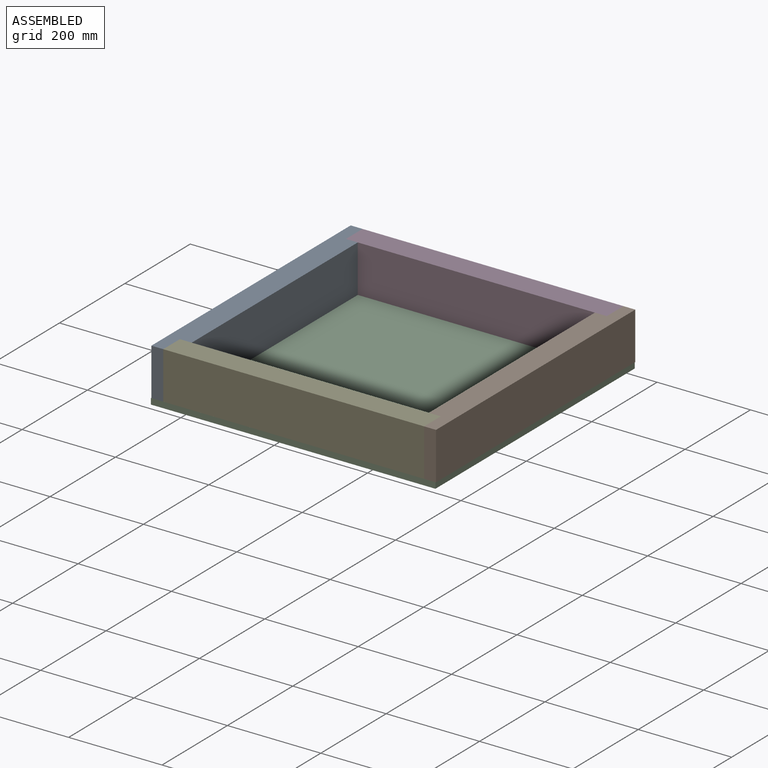
[diagram: assembled view]
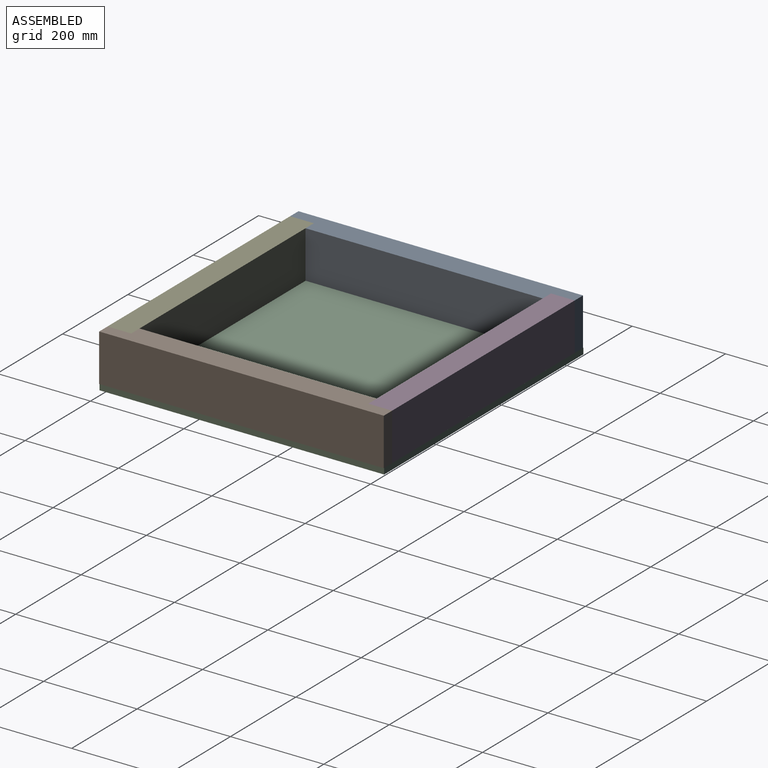
[diagram: assembled view, second angle]
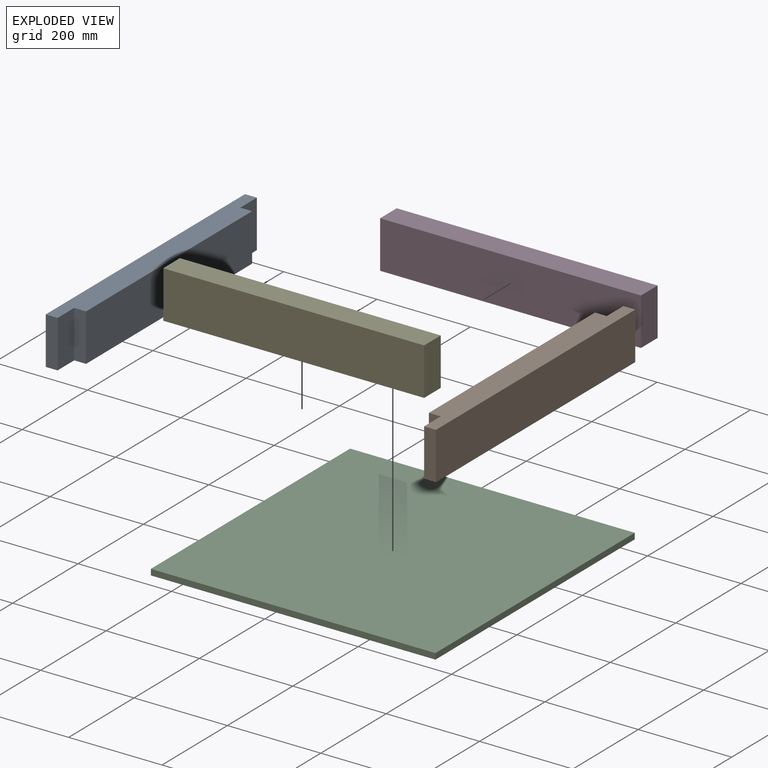
[diagram: exploded view]
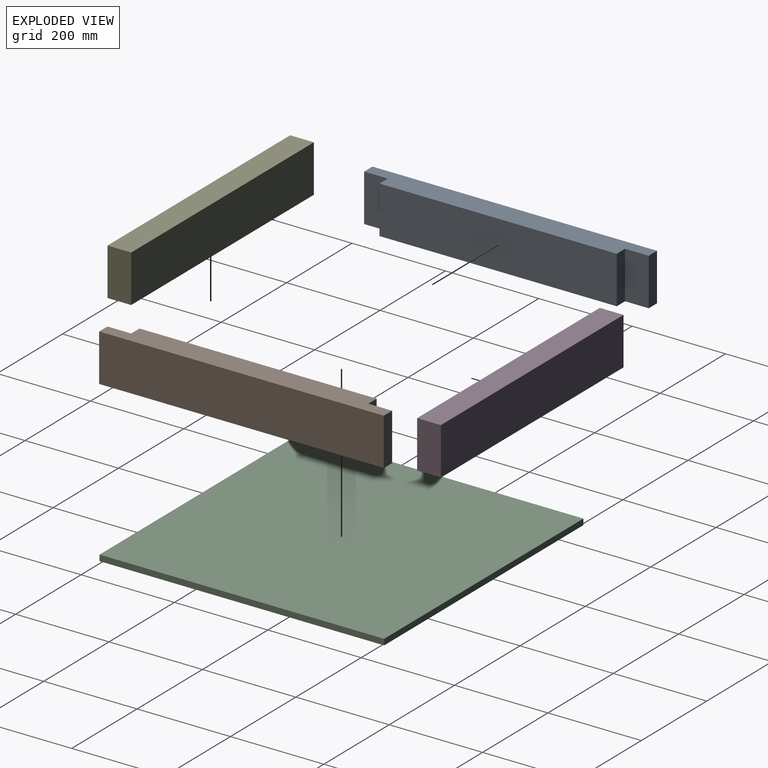
[diagram: exploded view, second angle]
ASSEMBLY  parts=5 mates=5
PART A: 10 faces, bbox 609.6x101.6x50.8 mm
  f0: plane 101.6x25.4mm, normal (-1,0,0), area 2580.6mm2, adj f1,f3,f5,f9
  f1: plane 609.6x50.8mm, normal (0,-1,0), area 28387mm2, adj f0,f2,f4,f5,f6,f7,f8,f9
  f2: plane 101.6x25.4mm, normal (1,0,0), area 2580.6mm2, adj f1,f3,f5,f7
  f3: plane 609.6x50.8mm, normal (0,1,0), area 28387mm2, adj f0,f2,f4,f5,f6,f7,f8,f9
  f4: plane 508x101.6mm, normal (0,0,1), area 51612.8mm2, adj f1,f3,f6,f8
  f5: plane 609.6x101.6mm, normal (0,0,-1), area 61935.4mm2, adj f0,f1,f2,f3
  f6: plane 101.6x25.4mm, normal (1,0,0), area 2580.6mm2, adj f1,f3,f4,f7
  f7: plane 101.6x50.8mm, normal (0,0,1), area 5161.3mm2, adj f1,f2,f3,f6
  f8: plane 101.6x25.4mm, normal (-1,0,0), area 2580.6mm2, adj f1,f3,f4,f9
  f9: plane 101.6x50.8mm, normal (0,0,1), area 5161.3mm2, adj f0,f1,f3,f8
PART B: same geometry as A
PART C: 6 faces, bbox 609.6x609.6x12.7 mm
  f0: plane 609.6x12.7mm, normal (1,0,0), area 7741.9mm2, adj f1,f3,f4,f5
  f1: plane 609.6x12.7mm, normal (0,1,0), area 7741.9mm2, adj f0,f2,f4,f5
  f2: plane 609.6x12.7mm, normal (-1,0,0), area 7741.9mm2, adj f1,f3,f4,f5
  f3: plane 609.6x12.7mm, normal (0,-1,0), area 7741.9mm2, adj f0,f2,f4,f5
  f4: plane 609.6x609.6mm, normal (0,0,1), area 371612.2mm2, adj f0,f1,f2,f3
  f5: plane 609.6x609.6mm, normal (0,0,-1), area 371612.2mm2, adj f0,f1,f2,f3
PART D: 6 faces, bbox 558.8x101.6x50.8 mm
  f0: plane 558.8x50.8mm, normal (0,1,0), area 28387mm2, adj f1,f3,f4,f5
  f1: plane 101.6x50.8mm, normal (-1,0,0), area 5161.3mm2, adj f0,f2,f4,f5
  f2: plane 558.8x50.8mm, normal (0,-1,0), area 28387mm2, adj f1,f3,f4,f5
  f3: plane 101.6x50.8mm, normal (1,0,0), area 5161.3mm2, adj f0,f2,f4,f5
  f4: plane 558.8x101.6mm, normal (0,0,1), area 56774.1mm2, adj f0,f1,f2,f3
  f5: plane 558.8x101.6mm, normal (0,0,-1), area 56774.1mm2, adj f0,f1,f2,f3
PART E: same geometry as D
PLACE A rot(axis=(0.58,0.58,0.58),120deg) t=(-850.17,-322.73,-470.92)mm
PLACE B rot(axis=(0.58,-0.58,-0.58),120deg) t=(-240.57,153.18,-470.92)mm
PLACE C t=(-1617.37,-142.73,-449.53)mm
PLACE D rot(axis=(1,0,0),90deg) t=(-966.21,220.03,-307.57)mm
PLACE E rot(axis=(1,0,0),90deg) t=(-966.21,-338.77,-307.57)mm
MATE planar B.f1 <-> C.f4  axis (0,0,-1) through (-264.81,-84.77,-436.83)mm
MATE planar B.f7 <-> E.f3  axis (-1,0,0) through (-265.97,-364.17,-386.03)mm
MATE planar E.f1 <-> A.f9  axis (-1,0,0) through (-824.77,-364.17,-386.03)mm
MATE planar D.f1 <-> A.f7  axis (-1,0,0) through (-824.77,194.63,-386.03)mm
MATE planar A.f1 <-> C.f4  axis (0,0,-1) through (-825.92,-84.77,-436.83)mm
